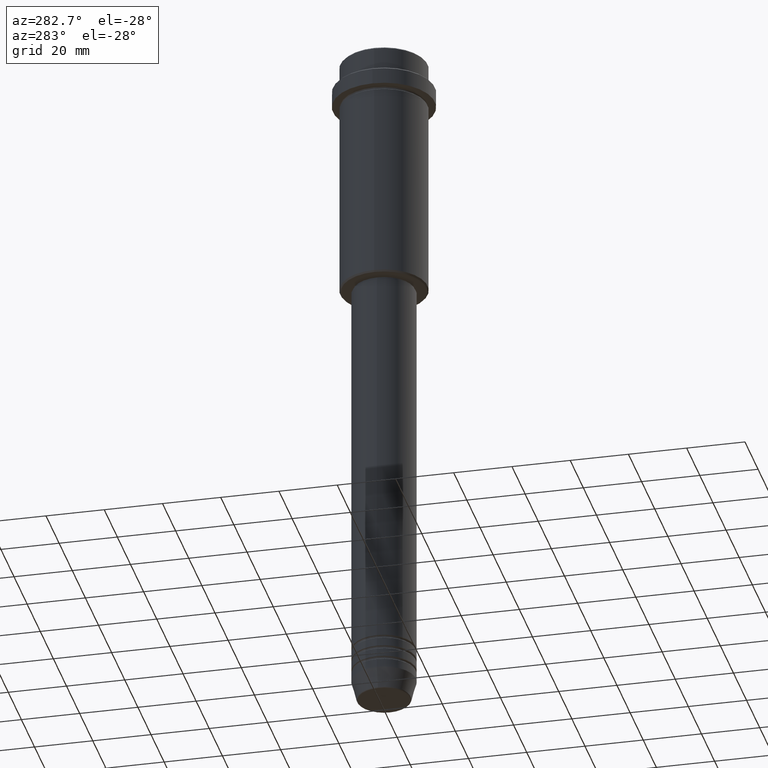
[diagram: clean part render]
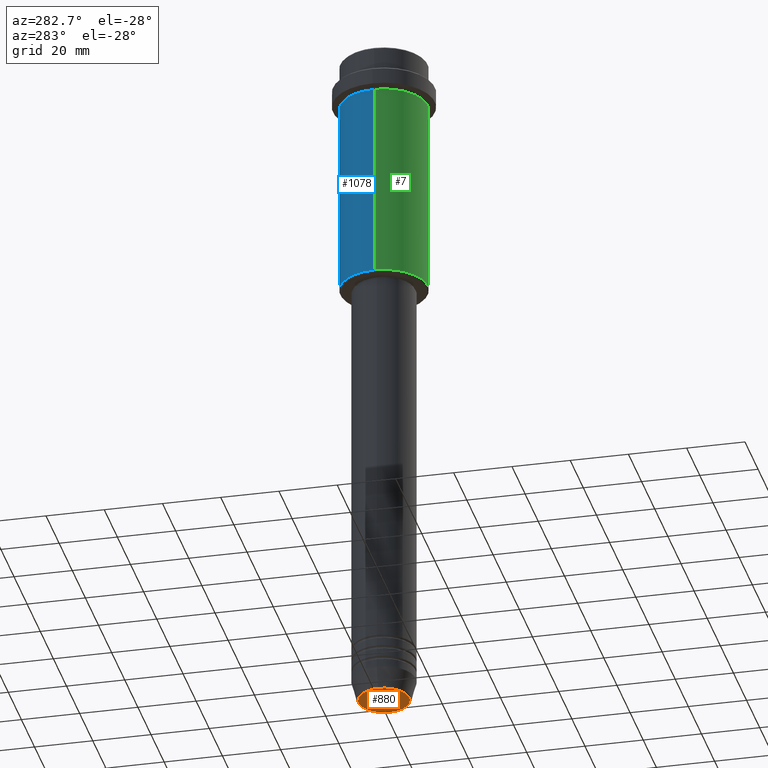
[diagram: same view with three faces highlighted in distinct colors, each labeled with its STEP entity id]
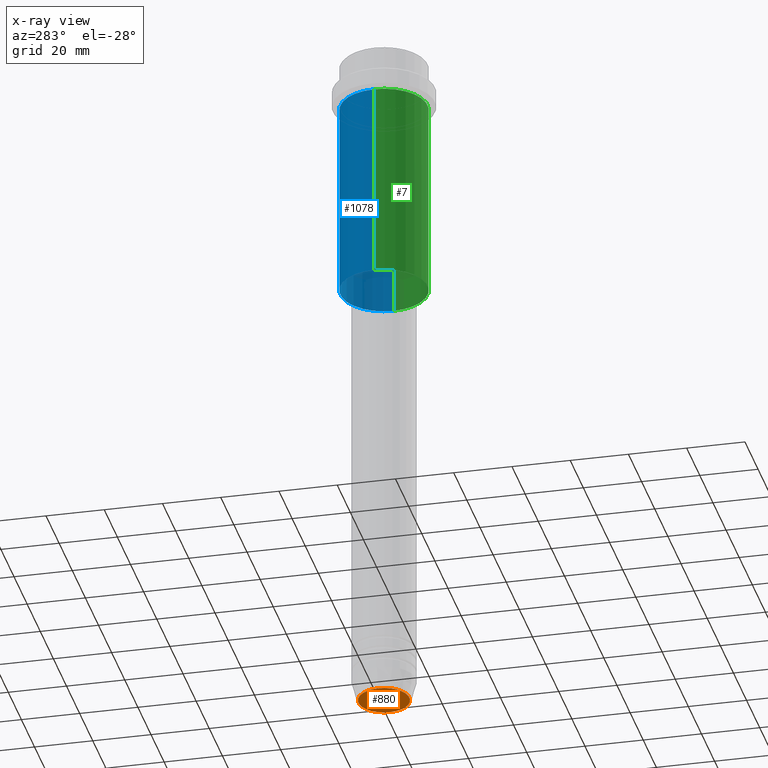
[diagram: x-ray of the same camera — body ghosted, the three highlighted faces saturated]
A machine part, auxiliary view with three faces highlighted in distinct colors.
The next image is the same camera in x-ray (body ghosted, the three faces saturated) — at least one of them is partly hidden behind the body in this view.
Their STEP definitions:

[orange] entity #880 — the highlighted planar face has unit normal (0, -0, 1).
#6 = DIRECTION ( 'NONE',  ( 0.000000000000000000, -0.000000000000000000, 1.000000000000000000 ) ) ;
#32 = VERTEX_POINT ( 'NONE', #664 ) ;
#74 = DIRECTION ( 'NONE',  ( 0.000000000000000000, 0.000000000000000000, -1.000000000000000000 ) ) ;
#208 = AXIS2_PLACEMENT_3D ( 'NONE', #235, #6, #446 ) ;
#235 = CARTESIAN_POINT ( 'NONE',  ( 0.000000000000000000, 0.000000000000000000, -240.0000000000000000 ) ) ;
#260 = EDGE_LOOP ( 'NONE', ( #1065, #838 ) ) ;
#322 = EDGE_CURVE ( 'NONE', #32, #665, #649, .T. ) ;
#327 = AXIS2_PLACEMENT_3D ( 'NONE', #1079, #74, #507 ) ;
#367 = DIRECTION ( 'NONE',  ( 0.000000000000000000, 0.000000000000000000, -1.000000000000000000 ) ) ;
#446 = DIRECTION ( 'NONE',  ( 1.000000000000000000, 0.000000000000000000, 0.000000000000000000 ) ) ;
#452 = DIRECTION ( 'NONE',  ( 1.000000000000000000, 0.000000000000000000, 0.000000000000000000 ) ) ;
#490 = CIRCLE ( 'NONE', #1190, 8.740692158992656502 ) ;
#507 = DIRECTION ( 'NONE',  ( 1.000000000000000000, 0.000000000000000000, 0.000000000000000000 ) ) ;
#548 = FACE_OUTER_BOUND ( 'NONE', #260, .T. ) ;
#575 = CARTESIAN_POINT ( 'NONE',  ( 0.000000000000000000, 0.000000000000000000, -240.0000000000000000 ) ) ;
#649 = CIRCLE ( 'NONE', #327, 8.740692158992656502 ) ;
#664 = CARTESIAN_POINT ( 'NONE',  ( 8.740692158992656502, 0.000000000000000000, -240.0000000000000000 ) ) ;
#665 = VERTEX_POINT ( 'NONE', #815 ) ;
#815 = CARTESIAN_POINT ( 'NONE',  ( -8.740692158992656502, 1.099999016768739653E-15, -240.0000000000000000 ) ) ;
#838 = ORIENTED_EDGE ( 'NONE', *, *, #1043, .T. ) ;
#880 = ADVANCED_FACE ( 'NONE', ( #548 ), #1414, .F. ) ;
#1043 = EDGE_CURVE ( 'NONE', #665, #32, #490, .T. ) ;
#1065 = ORIENTED_EDGE ( 'NONE', *, *, #322, .T. ) ;
#1079 = CARTESIAN_POINT ( 'NONE',  ( 0.000000000000000000, 0.000000000000000000, -240.0000000000000000 ) ) ;
#1190 = AXIS2_PLACEMENT_3D ( 'NONE', #575, #367, #452 ) ;
#1414 = PLANE ( 'NONE',  #208 ) ;

[blue] entity #1078 — the highlighted cylindrical surface (partial cylindrical patch) has radius 15 mm, axis along (-0, -0, 1).
#9 = CARTESIAN_POINT ( 'NONE',  ( 0.000000000000000000, 0.000000000000000000, 0.000000000000000000 ) ) ;
#78 = LINE ( 'NONE', #925, #633 ) ;
#100 = CARTESIAN_POINT ( 'NONE',  ( 0.000000000000000000, 0.000000000000000000, -84.49999999999992895 ) ) ;
#216 = DIRECTION ( 'NONE',  ( -0.000000000000000000, -0.000000000000000000, 1.000000000000000000 ) ) ;
#277 = CARTESIAN_POINT ( 'NONE',  ( 0.000000000000000000, 0.000000000000000000, -16.00000000000000000 ) ) ;
#318 = VERTEX_POINT ( 'NONE', #411 ) ;
#320 = CARTESIAN_POINT ( 'NONE',  ( 15.00000000000000178, 0.000000000000000000, -16.00000000000000000 ) ) ;
#344 = DIRECTION ( 'NONE',  ( 1.000000000000000000, 0.000000000000000000, 0.000000000000000000 ) ) ;
#377 = DIRECTION ( 'NONE',  ( -0.000000000000000000, -0.000000000000000000, 1.000000000000000000 ) ) ;
#386 = DIRECTION ( 'NONE',  ( -1.000000000000000000, 0.000000000000000000, 0.000000000000000000 ) ) ;
#390 = DIRECTION ( 'NONE',  ( -0.000000000000000000, -0.000000000000000000, 1.000000000000000000 ) ) ;
#397 = CIRCLE ( 'NONE', #1347, 15.00000000000000178 ) ;
#398 = VERTEX_POINT ( 'NONE', #493 ) ;
#406 = CARTESIAN_POINT ( 'NONE',  ( -15.00000000000000000, 1.836970198721029589E-15, -84.49999999999992895 ) ) ;
#411 = CARTESIAN_POINT ( 'NONE',  ( 15.00000000000000000, 0.000000000000000000, -84.49999999999992895 ) ) ;
#415 = VERTEX_POINT ( 'NONE', #406 ) ;
#417 = EDGE_LOOP ( 'NONE', ( #913, #431, #1208, #1152 ) ) ;
#431 = ORIENTED_EDGE ( 'NONE', *, *, #1198, .T. ) ;
#462 = AXIS2_PLACEMENT_3D ( 'NONE', #9, #1348, #344 ) ;
#493 = CARTESIAN_POINT ( 'NONE',  ( -15.00000000000000355, 1.836970198721029983E-15, -16.00000000000000000 ) ) ;
#511 = CIRCLE ( 'NONE', #1303, 15.00000000000000000 ) ;
#567 = EDGE_CURVE ( 'NONE', #1337, #398, #397, .T. ) ;
#633 = VECTOR ( 'NONE', #390, 1000.000000000000000 ) ;
#689 = FACE_OUTER_BOUND ( 'NONE', #417, .T. ) ;
#775 = CARTESIAN_POINT ( 'NONE',  ( 15.00000000000000000, 0.000000000000000000, 0.000000000000000000 ) ) ;
#831 = DIRECTION ( 'NONE',  ( 1.000000000000000000, 0.000000000000000000, 0.000000000000000000 ) ) ;
#873 = LINE ( 'NONE', #775, #1394 ) ;
#913 = ORIENTED_EDGE ( 'NONE', *, *, #960, .T. ) ;
#925 = CARTESIAN_POINT ( 'NONE',  ( -15.00000000000000000, 1.836970198721029589E-15, 0.000000000000000000 ) ) ;
#960 = EDGE_CURVE ( 'NONE', #318, #415, #511, .T. ) ;
#1078 = ADVANCED_FACE ( 'NONE', ( #689 ), #1121, .T. ) ;
#1121 = CYLINDRICAL_SURFACE ( 'NONE', #462, 15.00000000000000000 ) ;
#1152 = ORIENTED_EDGE ( 'NONE', *, *, #1408, .F. ) ;
#1198 = EDGE_CURVE ( 'NONE', #415, #398, #78, .T. ) ;
#1208 = ORIENTED_EDGE ( 'NONE', *, *, #567, .F. ) ;
#1303 = AXIS2_PLACEMENT_3D ( 'NONE', #100, #1304, #386 ) ;
#1304 = DIRECTION ( 'NONE',  ( -0.000000000000000000, -0.000000000000000000, 1.000000000000000000 ) ) ;
#1337 = VERTEX_POINT ( 'NONE', #320 ) ;
#1347 = AXIS2_PLACEMENT_3D ( 'NONE', #277, #377, #831 ) ;
#1348 = DIRECTION ( 'NONE',  ( -0.000000000000000000, -0.000000000000000000, 1.000000000000000000 ) ) ;
#1394 = VECTOR ( 'NONE', #216, 1000.000000000000000 ) ;
#1408 = EDGE_CURVE ( 'NONE', #318, #1337, #873, .T. ) ;

[green] entity #7 — the highlighted cylindrical surface (partial cylindrical patch) has radius 15 mm, axis along (-0, -0, 1).
#7 = ADVANCED_FACE ( 'NONE', ( #524 ), #961, .T. ) ;
#20 = DIRECTION ( 'NONE',  ( 1.000000000000000000, 0.000000000000000000, 0.000000000000000000 ) ) ;
#76 = ORIENTED_EDGE ( 'NONE', *, *, #783, .F. ) ;
#78 = LINE ( 'NONE', #925, #633 ) ;
#91 = CIRCLE ( 'NONE', #1209, 15.00000000000000178 ) ;
#216 = DIRECTION ( 'NONE',  ( -0.000000000000000000, -0.000000000000000000, 1.000000000000000000 ) ) ;
#232 = DIRECTION ( 'NONE',  ( -0.000000000000000000, -0.000000000000000000, 1.000000000000000000 ) ) ;
#252 = AXIS2_PLACEMENT_3D ( 'NONE', #762, #232, #1411 ) ;
#318 = VERTEX_POINT ( 'NONE', #411 ) ;
#320 = CARTESIAN_POINT ( 'NONE',  ( 15.00000000000000178, 0.000000000000000000, -16.00000000000000000 ) ) ;
#378 = CARTESIAN_POINT ( 'NONE',  ( 0.000000000000000000, 0.000000000000000000, -84.49999999999992895 ) ) ;
#388 = ORIENTED_EDGE ( 'NONE', *, *, #534, .T. ) ;
#390 = DIRECTION ( 'NONE',  ( -0.000000000000000000, -0.000000000000000000, 1.000000000000000000 ) ) ;
#398 = VERTEX_POINT ( 'NONE', #493 ) ;
#406 = CARTESIAN_POINT ( 'NONE',  ( -15.00000000000000000, 1.836970198721029589E-15, -84.49999999999992895 ) ) ;
#411 = CARTESIAN_POINT ( 'NONE',  ( 15.00000000000000000, 0.000000000000000000, -84.49999999999992895 ) ) ;
#415 = VERTEX_POINT ( 'NONE', #406 ) ;
#493 = CARTESIAN_POINT ( 'NONE',  ( -15.00000000000000355, 1.836970198721029983E-15, -16.00000000000000000 ) ) ;
#524 = FACE_OUTER_BOUND ( 'NONE', #716, .T. ) ;
#534 = EDGE_CURVE ( 'NONE', #415, #318, #549, .T. ) ;
#549 = CIRCLE ( 'NONE', #832, 15.00000000000000000 ) ;
#633 = VECTOR ( 'NONE', #390, 1000.000000000000000 ) ;
#648 = ORIENTED_EDGE ( 'NONE', *, *, #1198, .F. ) ;
#716 = EDGE_LOOP ( 'NONE', ( #648, #388, #855, #76 ) ) ;
#731 = DIRECTION ( 'NONE',  ( -0.000000000000000000, -0.000000000000000000, 1.000000000000000000 ) ) ;
#762 = CARTESIAN_POINT ( 'NONE',  ( 0.000000000000000000, 0.000000000000000000, 0.000000000000000000 ) ) ;
#775 = CARTESIAN_POINT ( 'NONE',  ( 15.00000000000000000, 0.000000000000000000, 0.000000000000000000 ) ) ;
#783 = EDGE_CURVE ( 'NONE', #398, #1337, #91, .T. ) ;
#832 = AXIS2_PLACEMENT_3D ( 'NONE', #378, #731, #1251 ) ;
#855 = ORIENTED_EDGE ( 'NONE', *, *, #1408, .T. ) ;
#873 = LINE ( 'NONE', #775, #1394 ) ;
#925 = CARTESIAN_POINT ( 'NONE',  ( -15.00000000000000000, 1.836970198721029589E-15, 0.000000000000000000 ) ) ;
#961 = CYLINDRICAL_SURFACE ( 'NONE', #252, 15.00000000000000000 ) ;
#1110 = DIRECTION ( 'NONE',  ( -0.000000000000000000, -0.000000000000000000, 1.000000000000000000 ) ) ;
#1198 = EDGE_CURVE ( 'NONE', #415, #398, #78, .T. ) ;
#1209 = AXIS2_PLACEMENT_3D ( 'NONE', #1326, #1110, #20 ) ;
#1251 = DIRECTION ( 'NONE',  ( -1.000000000000000000, 0.000000000000000000, 0.000000000000000000 ) ) ;
#1326 = CARTESIAN_POINT ( 'NONE',  ( 0.000000000000000000, 0.000000000000000000, -16.00000000000000000 ) ) ;
#1337 = VERTEX_POINT ( 'NONE', #320 ) ;
#1394 = VECTOR ( 'NONE', #216, 1000.000000000000000 ) ;
#1408 = EDGE_CURVE ( 'NONE', #318, #1337, #873, .T. ) ;
#1411 = DIRECTION ( 'NONE',  ( 1.000000000000000000, 0.000000000000000000, 0.000000000000000000 ) ) ;